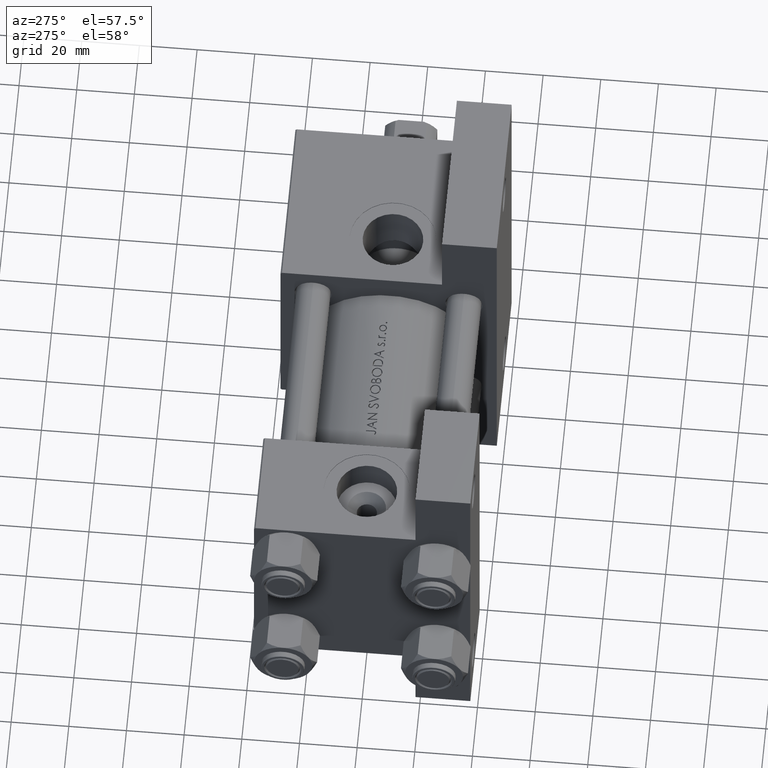
[diagram: clean part render]
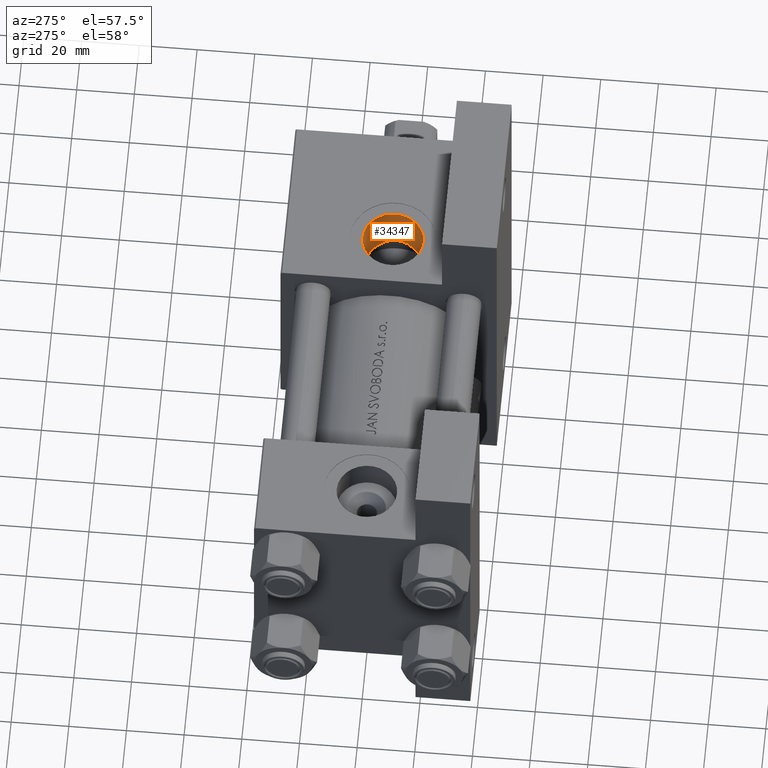
[diagram: same view with one face highlighted and labeled with its STEP entity id]
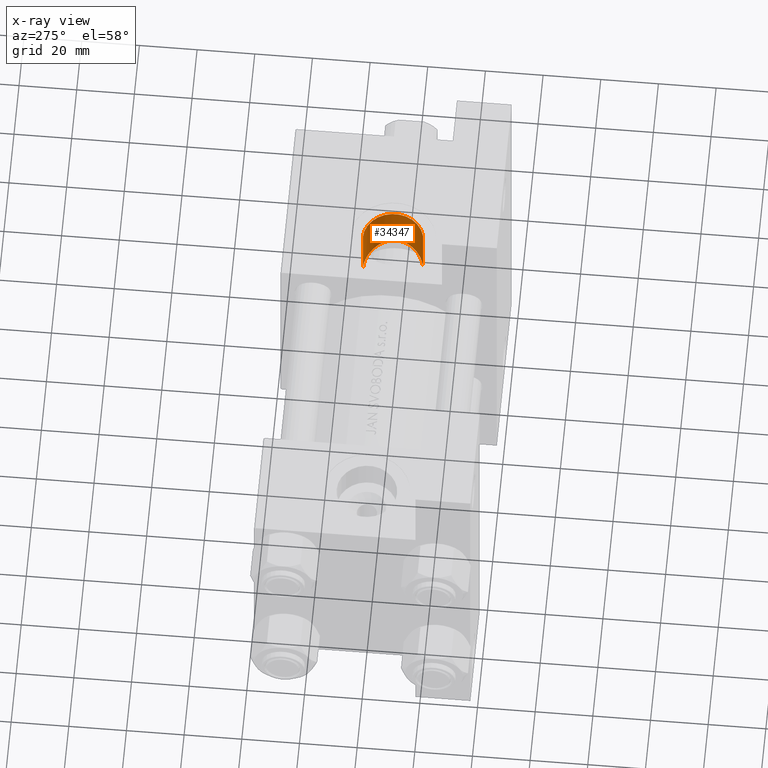
[diagram: x-ray of the same camera — body ghosted, the highlighted face saturated]
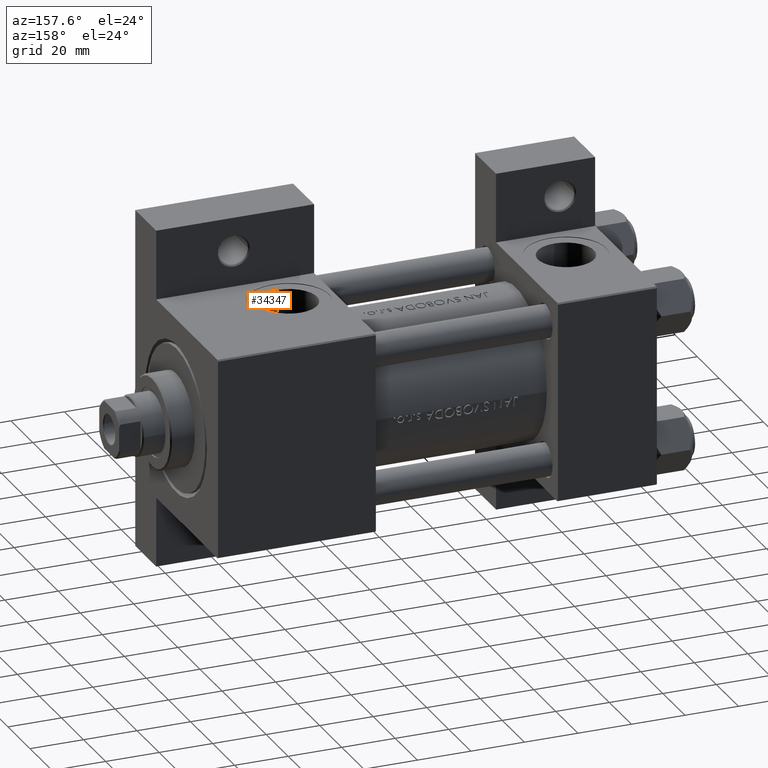
[diagram: same view with one face highlighted and labeled with its STEP entity id]
A machine part, auxiliary view. The second image highlights one B-rep face of the part: STEP entity #34347.
The next image is the same camera in x-ray: the body ghosted, the highlighted face saturated — about 0% of this face is hidden behind the body in this view.
A second angle (auxiliary view) of the same face is appended — the face is thin or edge-on in the first view.
In plain terms, the highlighted cylindrical surface (edge-blend (fillet) strip) has radius 10.48 mm, axis along (-0, -0, 1).
Its self-contained STEP definition (entity closure, byte-faithful):
#1479 = CARTESIAN_POINT ( 'NONE',  ( 132.4583245133797504, -20.46430137750835598, 0.7579182357777605183 ) ) ;
#1714 = CARTESIAN_POINT ( 'NONE',  ( 132.4015008588858962, -20.48626732390679805, -1.327331865308750691 ) ) ;
#1960 = CARTESIAN_POINT ( 'NONE',  ( 132.3852102648228595, -20.41012014665353647, 1.448585321858009589 ) ) ;
#3032 = CARTESIAN_POINT ( 'NONE',  ( 122.0000000000000142, -37.29999999999999716, 10.48000000000000398 ) ) ;
#3399 = CIRCLE ( 'NONE', #14541, 10.48000000000000043 ) ;
#4093 = VECTOR ( 'NONE', #35113, 1000.000000000000000 ) ;
#4974 = CARTESIAN_POINT ( 'NONE',  ( 132.4819445000526628, -20.50178181377810560, -0.2822101851752893409 ) ) ;
#5215 = CARTESIAN_POINT ( 'NONE',  ( 128.3953719826940301, -18.50579674927558571, 8.329556230503525782 ) ) ;
#5455 = CARTESIAN_POINT ( 'NONE',  ( 122.3524141148301254, -17.90669148670408006, -10.47999999999999332 ) ) ;
#5695 = CARTESIAN_POINT ( 'NONE',  ( 128.9416544847751425, -19.13207627753017448, -7.880695095096331926 ) ) ;
#6499 = ORIENTED_EDGE ( 'NONE', *, *, #13915, .T. ) ;
#7481 = CARTESIAN_POINT ( 'NONE',  ( 123.3951252308203124, -17.36667489365844830, 10.39267281819422095 ) ) ;
#8020 = EDGE_CURVE ( 'NONE', #12745, #14678, #19918, .T. ) ;
#8094 = EDGE_LOOP ( 'NONE', ( #26668, #6499, #45805, #47305 ) ) ;
#8721 = CARTESIAN_POINT ( 'NONE',  ( 129.8679744497729018, -19.10325731143031902, 6.954996736502861765 ) ) ;
#8955 = CARTESIAN_POINT ( 'NONE',  ( 127.2787600379286488, -18.12953982762253702, 9.078379935655654265 ) ) ;
#9196 = CARTESIAN_POINT ( 'NONE',  ( 130.9026386617618130, -19.87300753805846298, -5.539771893847129647 ) ) ;
#9826 = AXIS2_PLACEMENT_3D ( 'NONE', #33337, #22377, #25362 ) ;
#9871 = CARTESIAN_POINT ( 'NONE',  ( 122.0000000000000142, -37.29999999999999716, -10.47999999999999687 ) ) ;
#11117 = EDGE_CURVE ( 'NONE', #28746, #14678, #3399, .T. ) ;
#11977 = DIRECTION ( 'NONE',  ( 0.000000000000000000, -1.000000000000000000, -8.673617379884036705E-17 ) ) ;
#12391 = DIRECTION ( 'NONE',  ( -0.000000000000000000, -1.000000000000000000, -8.673617379884036705E-17 ) ) ;
#12704 = CARTESIAN_POINT ( 'NONE',  ( 132.3507038963579419, -20.46901633175582447, -1.677836523642076694 ) ) ;
#12745 = VERTEX_POINT ( 'NONE', #42948 ) ;
#12942 = CARTESIAN_POINT ( 'NONE',  ( 123.7410054315663217, -17.39963274831549001, 10.34017078318250960 ) ) ;
#13185 = CARTESIAN_POINT ( 'NONE',  ( 126.6885837709134677, -18.47081169218747121, -9.397559365377066598 ) ) ;
#13915 = EDGE_CURVE ( 'NONE', #12745, #30883, #31525, .T. ) ;
#14541 = AXIS2_PLACEMENT_3D ( 'NONE', #42348, #11977, #38367 ) ;
#14678 = VERTEX_POINT ( 'NONE', #3032 ) ;
#16193 = CARTESIAN_POINT ( 'NONE',  ( 132.3311065042815358, -20.37409322011633606, 1.794586109409265440 ) ) ;
#16437 = CARTESIAN_POINT ( 'NONE',  ( 124.7588417203788396, -17.52693762274573785, 10.13402779325159386 ) ) ;
#16635 = EDGE_CURVE ( 'NONE', #30883, #28746, #31322, .T. ) ;
#16675 = CARTESIAN_POINT ( 'NONE',  ( 123.7534701870718834, -17.98521153983801923, -10.33810977386607988 ) ) ;
#16910 = CARTESIAN_POINT ( 'NONE',  ( 124.7750123670571440, -18.09812027575557991, -10.12979723076934668 ) ) ;
#19918 = LINE ( 'NONE', #38837, #4093 ) ;
#20425 = CARTESIAN_POINT ( 'NONE',  ( 129.8913372837819225, -19.47582360453930406, -6.904560610471939697 ) ) ;
#20885 = CARTESIAN_POINT ( 'NONE',  ( 125.4291236246859427, -18.20648317701849805, -9.926633415679289030 ) ) ;
#21917 = CARTESIAN_POINT ( 'NONE',  ( 122.0000000000000142, -17.90669148670407651, -10.47999999999999510 ) ) ;
#22377 = DIRECTION ( 'NONE',  ( -0.000000000000000000, -1.000000000000000000, -8.673617379884036705E-17 ) ) ;
#23911 = CARTESIAN_POINT ( 'NONE',  ( 131.0783182432222418, -19.94519646484592812, -5.247152792081116068 ) ) ;
#24149 = CARTESIAN_POINT ( 'NONE',  ( 132.1488622720015655, -20.39261420473474118, -2.705221023230758526 ) ) ;
#24391 = CARTESIAN_POINT ( 'NONE',  ( 131.9112922687107812, -20.12166452589491783, 3.472274471029917819 ) ) ;
#25362 = DIRECTION ( 'NONE',  ( 0.000000000000000000, 0.000000000000000000, -1.000000000000000000 ) ) ;
#26418 = CARTESIAN_POINT ( 'NONE',  ( 122.3470210746793327, -17.31154528053460595, 10.48000000000001108 ) ) ;
#26668 = ORIENTED_EDGE ( 'NONE', *, *, #8020, .F. ) ;
#27662 = CARTESIAN_POINT ( 'NONE',  ( 127.2983228447828168, -18.62849765410345881, -9.067371222007601261 ) ) ;
#27900 = CARTESIAN_POINT ( 'NONE',  ( 130.2943842801271046, -19.29805340160767102, 6.441284550439737799 ) ) ;
#28144 = CARTESIAN_POINT ( 'NONE',  ( 132.1175830810125831, -20.24111318549746841, 2.820020607438593174 ) ) ;
#28383 = CARTESIAN_POINT ( 'NONE',  ( 126.6848851208464168, -17.95378683072778259, 9.399761861338296498 ) ) ;
#28746 = VERTEX_POINT ( 'NONE', #9871 ) ;
#30160 = CARTESIAN_POINT ( 'NONE',  ( 122.6954312938288751, -17.32248566803109568, 10.46281023584332992 ) ) ;
#30883 = VERTEX_POINT ( 'NONE', #21917 ) ;
#31322 = LINE ( 'NONE', #46502, #36853 ) ;
#31400 = CARTESIAN_POINT ( 'NONE',  ( 123.4044395936603991, -17.95581939429249374, -10.39141979412305439 ) ) ;
#31525 = B_SPLINE_CURVE_WITH_KNOTS ( 'NONE', 3,
 ( #33900, #26418, #30160, #7481, #12942, #16437, #43073, #28383, #8955, #5215, #39101, #8721, #27900, #46816, #43312, #35131, #46576, #24391, #28144, #16193, #1960, #1479, #35850, #4974, #47531, #1714, #12704, #24149, #39342, #35612, #31880, #23911, #9196, #35379, #39586, #20425, #36082, #5695, #32115, #27662, #13185, #20885, #16910, #16675, #31400, #43548, #5455, #47049 ),
 .UNSPECIFIED., .F., .F.,
 ( 4, 2, 2, 2, 2, 2, 2, 2, 2, 2, 2, 2, 2, 2, 2, 2, 2, 2, 2, 2, 2, 2, 2, 4 ),
 ( 0.03337172289375581885, 0.03441233523662732413, 0.03545294757949883635, 0.03753417226524185385, 0.03961539695098486441, 0.04169662163672788191, 0.04377784632247089247, 0.04481845866534240469, 0.04585907100821390997, 0.04794029569395695523, 0.04898090803682848132, 0.05002152037970000742, 0.05106213272257152658, 0.05210274506544304574, 0.05418396975118609793, 0.05522458209405760321, 0.05626519443692910849, 0.05730580677980061377, 0.05834641912267212599, 0.06042764380841508798, 0.06250886849415804303, 0.06459009317990101195, 0.06563070552277250336, 0.06667131786564400864 ),
 .UNSPECIFIED. ) ;
#31880 = CARTESIAN_POINT ( 'NONE',  ( 131.4025389929008725, -20.07976061505710064, -4.641199740976986732 ) ) ;
#32115 = CARTESIAN_POINT ( 'NONE',  ( 128.4217440813015685, -18.95863385658995171, -8.309672003124306983 ) ) ;
#33337 = CARTESIAN_POINT ( 'NONE',  ( 122.0000000000000142, 37.50100000000000477, 9.974746723040443104E-15 ) ) ;
#33838 = FACE_OUTER_BOUND ( 'NONE', #8094, .T. ) ;
#33900 = CARTESIAN_POINT ( 'NONE',  ( 122.0000000000000142, -17.31154528053460240, 10.48000000000000576 ) ) ;
#34347 = ADVANCED_FACE ( 'NONE', ( #33838 ), #48258, .F. ) ;
#35113 = DIRECTION ( 'NONE',  ( -0.000000000000000000, -1.000000000000000000, -8.673617379884036705E-17 ) ) ;
#35131 = CARTESIAN_POINT ( 'NONE',  ( 131.3662177968320179, -19.82832408839749050, 4.713768309937354850 ) ) ;
#35379 = CARTESIAN_POINT ( 'NONE',  ( 130.5247630629396269, -19.72096722719661344, -6.105281524917121061 ) ) ;
#35612 = CARTESIAN_POINT ( 'NONE',  ( 131.5516556862485515, -20.14238090880650134, -4.326202217588880572 ) ) ;
#35850 = CARTESIAN_POINT ( 'NONE',  ( 132.4776551375226461, -20.48265569949338172, 0.4117595292702561638 ) ) ;
#36082 = CARTESIAN_POINT ( 'NONE',  ( 129.6611621740133273, -19.38999619374663652, -7.159076384942108184 ) ) ;
#36853 = VECTOR ( 'NONE', #12391, 1000.000000000000000 ) ;
#38367 = DIRECTION ( 'NONE',  ( 0.000000000000000000, 0.000000000000000000, -1.000000000000000000 ) ) ;
#38837 = CARTESIAN_POINT ( 'NONE',  ( 122.0000000000000142, 37.50100000000000477, 10.48000000000000931 ) ) ;
#39101 = CARTESIAN_POINT ( 'NONE',  ( 128.9208345979154160, -18.70786800614510526, 7.898040897294866802 ) ) ;
#39342 = CARTESIAN_POINT ( 'NONE',  ( 131.9485359727863738, -20.30891902702525798, -3.366903607565230772 ) ) ;
#39586 = CARTESIAN_POINT ( 'NONE',  ( 130.3225662003737853, -19.64111042044596189, -6.378170050295228322 ) ) ;
#42348 = CARTESIAN_POINT ( 'NONE',  ( 122.0000000000000142, -37.29999999999999716, 3.486794186713383443E-15 ) ) ;
#42948 = CARTESIAN_POINT ( 'NONE',  ( 122.0000000000000142, -17.31154528053460240, 10.48000000000000576 ) ) ;
#43073 = CARTESIAN_POINT ( 'NONE',  ( 125.4159050215026241, -17.65012615064441448, 9.931528811289384251 ) ) ;
#43312 = CARTESIAN_POINT ( 'NONE',  ( 131.0415136392023783, -19.66186875787548516, 5.310054482731737302 ) ) ;
#43548 = CARTESIAN_POINT ( 'NONE',  ( 122.7047145583874936, -17.91665127801143242, -10.46219065497900758 ) ) ;
#45805 = ORIENTED_EDGE ( 'NONE', *, *, #16635, .T. ) ;
#46502 = CARTESIAN_POINT ( 'NONE',  ( 122.0000000000000142, 37.50100000000000477, -10.47999999999998977 ) ) ;
#46576 = CARTESIAN_POINT ( 'NONE',  ( 131.5136165929028209, -19.90621515629138116, 4.408684660160872681 ) ) ;
#46816 = CARTESIAN_POINT ( 'NONE',  ( 130.8632463434475426, -19.57285682509592561, 5.602446212762903777 ) ) ;
#47049 = CARTESIAN_POINT ( 'NONE',  ( 122.0000000000000142, -17.90669148670407651, -10.47999999999999510 ) ) ;
#47305 = ORIENTED_EDGE ( 'NONE', *, *, #11117, .T. ) ;
#47531 = CARTESIAN_POINT ( 'NONE',  ( 132.4669051482524935, -20.50255402113293712, -0.6300211231001486833 ) ) ;
#48258 = CYLINDRICAL_SURFACE ( 'NONE', #9826, 10.48000000000000043 ) ;